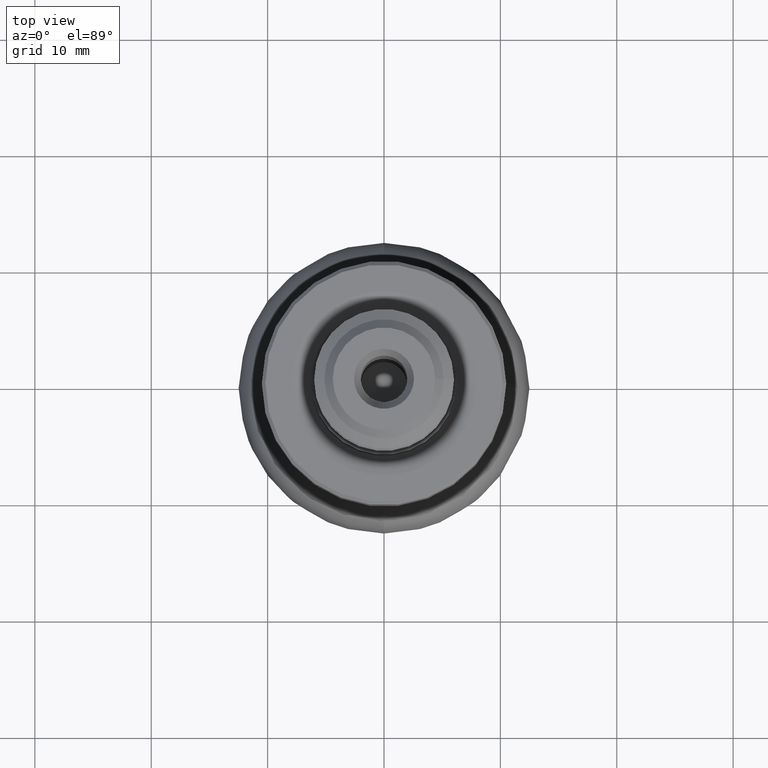
[diagram: clean part render]
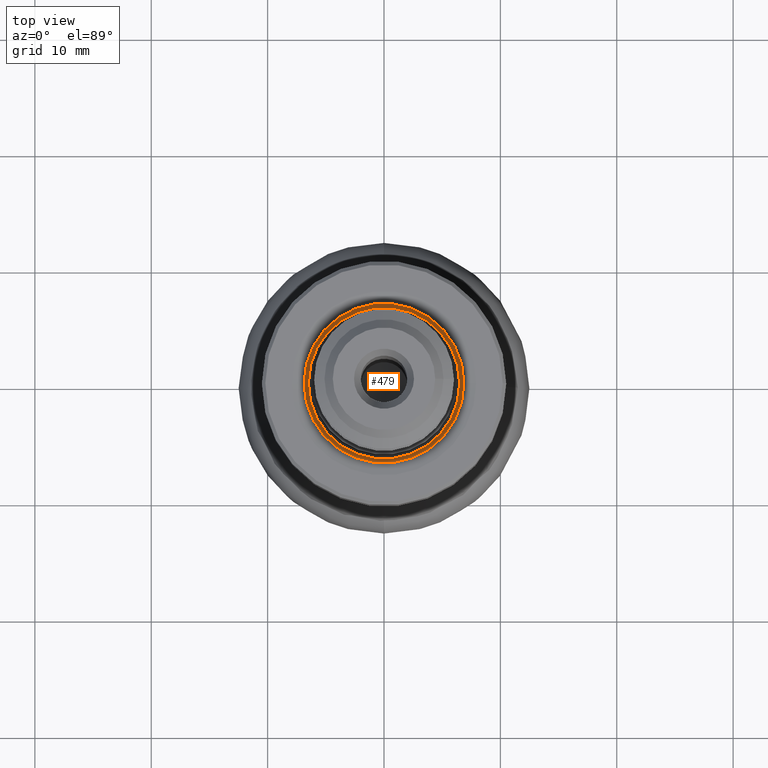
[diagram: same view with one face highlighted and labeled with its STEP entity id]
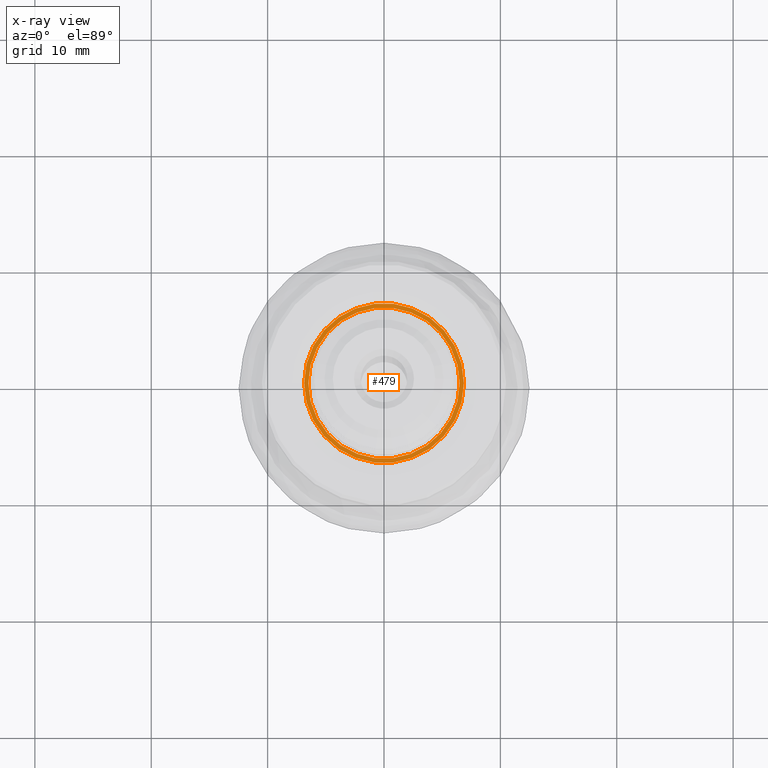
[diagram: x-ray of the same camera — body ghosted, the highlighted face saturated]
A machine part, top view. The second image highlights one B-rep face of the part: STEP entity #479.
The next image is the same camera in x-ray: the body ghosted, the highlighted face saturated — about 0% of this face is hidden behind the body in this view.
In plain terms, the highlighted planar face has unit normal (0, 0, -1).
Its self-contained STEP definition (entity closure, byte-faithful):
#82 = CARTESIAN_POINT ( 'NONE',  ( -6.145870741394952000, -2.116193003971219800, -29.81999999999999700 ) ) ;
#224 = EDGE_CURVE ( 'NONE', #304, #304, #816, .T. ) ;
#304 = VERTEX_POINT ( 'NONE', #1633 ) ;
#371 = CIRCLE ( 'NONE', #919, 6.499999999999328500 ) ;
#479 = ADVANCED_FACE ( 'NONE', ( #493, #699 ), #671, .F. ) ;
#493 = FACE_OUTER_BOUND ( 'NONE', #1729, .T. ) ;
#554 = DIRECTION ( 'NONE',  ( -0.0000000000000000000, -0.0000000000000000000, 1.000000000000000000 ) ) ;
#671 = PLANE ( 'NONE',  #998 ) ;
#697 = ORIENTED_EDGE ( 'NONE', *, *, #1013, .T. ) ;
#699 = FACE_BOUND ( 'NONE', #740, .T. ) ;
#740 = EDGE_LOOP ( 'NONE', ( #697 ) ) ;
#816 = CIRCLE ( 'NONE', #1488, 6.865004534588959700 ) ;
#896 = DIRECTION ( 'NONE',  ( -0.0000000000000000000, -0.0000000000000000000, 1.000000000000000000 ) ) ;
#919 = AXIS2_PLACEMENT_3D ( 'NONE', #1012, #896, #1273 ) ;
#998 = AXIS2_PLACEMENT_3D ( 'NONE', #82, #1396, #1947 ) ;
#1003 = VERTEX_POINT ( 'NONE', #1173 ) ;
#1012 = CARTESIAN_POINT ( 'NONE',  ( 0.0000000000000000000, 0.0000000000000000000, -29.81999999999999700 ) ) ;
#1013 = EDGE_CURVE ( 'NONE', #1003, #1003, #371, .T. ) ;
#1173 = CARTESIAN_POINT ( 'NONE',  ( 6.499999999999328500, 0.0000000000000000000, -29.81999999999999700 ) ) ;
#1232 = DIRECTION ( 'NONE',  ( 1.000000000000000000, 0.0000000000000000000, 0.0000000000000000000 ) ) ;
#1273 = DIRECTION ( 'NONE',  ( 1.000000000000000000, 0.0000000000000000000, 0.0000000000000000000 ) ) ;
#1396 = DIRECTION ( 'NONE',  ( 0.0000000000000000000, -0.0000000000000000000, 1.000000000000000000 ) ) ;
#1488 = AXIS2_PLACEMENT_3D ( 'NONE', #1540, #554, #1232 ) ;
#1540 = CARTESIAN_POINT ( 'NONE',  ( 0.0000000000000000000, 0.0000000000000000000, -29.81999999999999700 ) ) ;
#1633 = CARTESIAN_POINT ( 'NONE',  ( 6.865004534588959700, 0.0000000000000000000, -29.81999999999999700 ) ) ;
#1729 = EDGE_LOOP ( 'NONE', ( #1990 ) ) ;
#1947 = DIRECTION ( 'NONE',  ( 1.000000000000000000, 0.0000000000000000000, 0.0000000000000000000 ) ) ;
#1990 = ORIENTED_EDGE ( 'NONE', *, *, #224, .F. ) ;